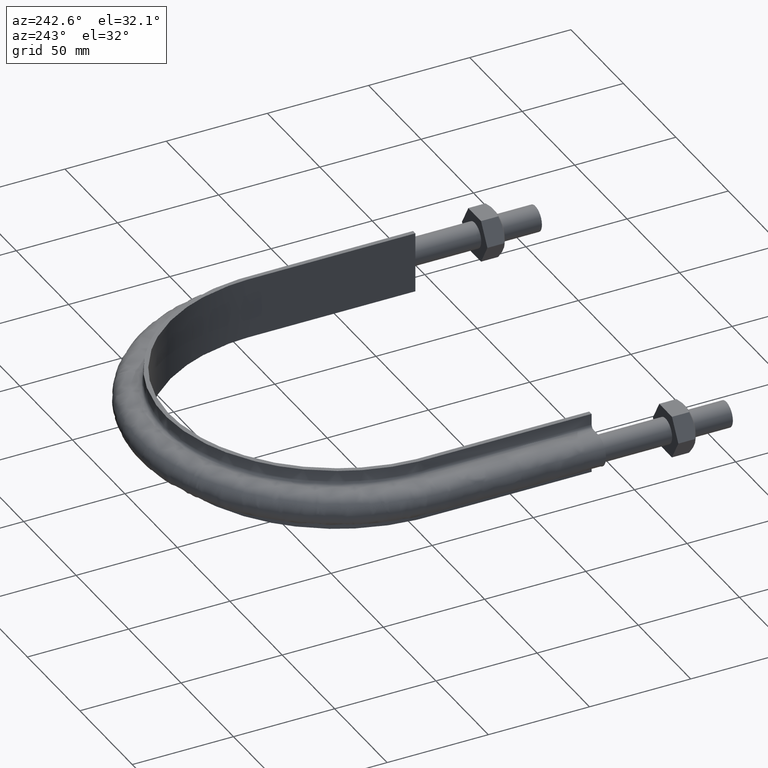
[diagram: clean part render]
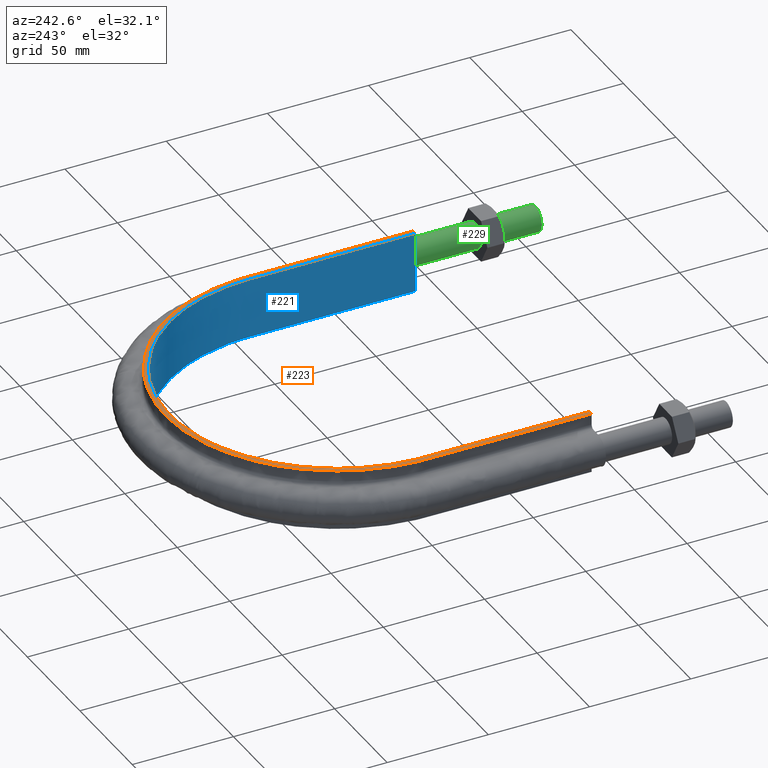
[diagram: same view with three faces highlighted in distinct colors, each labeled with its STEP entity id]
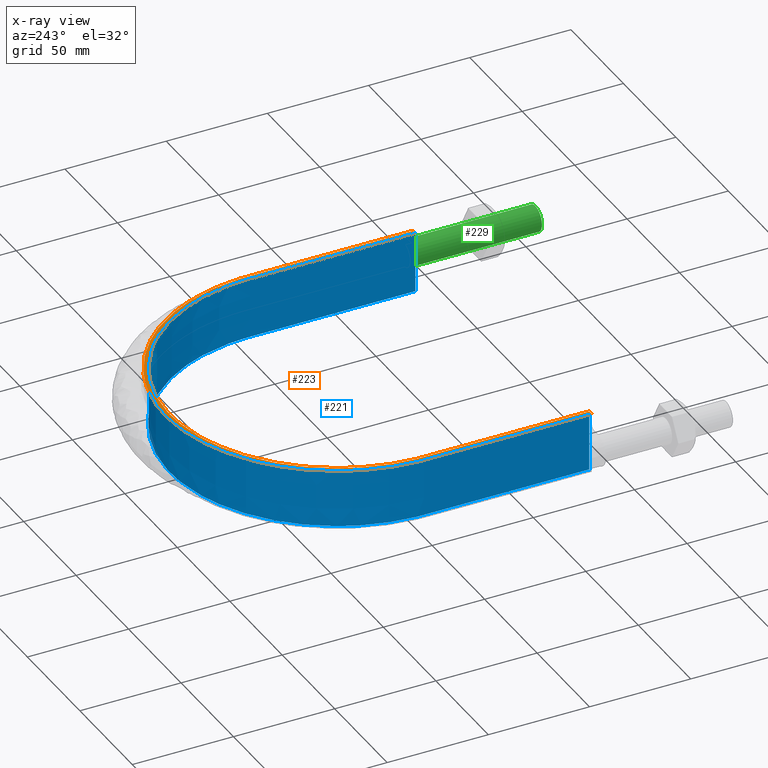
[diagram: x-ray of the same camera — body ghosted, the three highlighted faces saturated]
A machine part, auxiliary view with three faces highlighted in distinct colors.
The next image is the same camera in x-ray (body ghosted, the three faces saturated) — at least one of them is partly hidden behind the body in this view.
Their STEP definitions:

[orange] entity #223 — the highlighted planar face has unit normal (0, 0, 1).
#223 = ADVANCED_FACE( '', ( #268 ), #269, .T. );
#268 = FACE_OUTER_BOUND( '', #365, .T. );
#269 = PLANE( '', #366 );
#365 = EDGE_LOOP( '', ( #1394, #1395, #1396, #1397 ) );
#366 = AXIS2_PLACEMENT_3D( '', #1398, #1399, #1400 );
#1394 = ORIENTED_EDGE( '', *, *, #1602, .T. );
#1395 = ORIENTED_EDGE( '', *, *, #1609, .T. );
#1396 = ORIENTED_EDGE( '', *, *, #1612, .T. );
#1397 = ORIENTED_EDGE( '', *, *, #1614, .F. );
#1398 = CARTESIAN_POINT( '', ( 150.000000000000, 363.500000000000, 15.0000000000000 ) );
#1399 = DIRECTION( '', ( 0.000000000000000, 0.000000000000000, 1.00000000000000 ) );
#1400 = DIRECTION( '', ( 1.00000000000000, 0.000000000000000, 0.000000000000000 ) );
#1602 = EDGE_CURVE( '', #1670, #1668, #1671, .T. );
#1609 = EDGE_CURVE( '', #1668, #1682, #1683, .T. );
#1612 = EDGE_CURVE( '', #1682, #1685, #1687, .T. );
#1614 = EDGE_CURVE( '', #1670, #1685, #1690, .T. );
#1668 = VERTEX_POINT( '', #1784 );
#1670 = VERTEX_POINT( '', #1787 );
#1671 = LINE( '', #1788, #1789 );
#1682 = VERTEX_POINT( '', #1874 );
#1683 = B_SPLINE_CURVE_WITH_KNOTS( '', 3, ( #1875, #1876, #1877, #1878, #1879, #1880, #1881, #1882, #1883, #1884, #1885, #1886, #1887, #1888, #1889, #1890, #1891 ), .UNSPECIFIED., .F., .F., ( 4, 3, 1, 1, 1, 1, 1, 1, 1, 3, 4 ), ( -10.0000000000000, -9.00000000000000, -8.00000000000000, -7.00000000000000, -6.00000000000000, -5.00000000000000, -4.00000000000000, -3.00000000000000, -2.00000000000000, -1.00000000000000, 0.000000000000000 ), .UNSPECIFIED. );
#1685 = VERTEX_POINT( '', #1894 );
#1687 = LINE( '', #1926, #1927 );
#1690 = B_SPLINE_CURVE_WITH_KNOTS( '', 3, ( #1940, #1941, #1942, #1943, #1944, #1945, #1946, #1947, #1948, #1949, #1950, #1951, #1952, #1953, #1954, #1955, #1956 ), .UNSPECIFIED., .F., .F., ( 4, 3, 1, 1, 1, 1, 1, 1, 1, 3, 4 ), ( -10.0000000000000, -9.00000000000000, -8.00000000000000, -7.00000000000000, -6.00000000000000, -5.00000000000000, -4.00000000000000, -3.00000000000000, -2.00000000000000, -1.00000000000000, 0.000000000000000 ), .UNSPECIFIED. );
#1784 = CARTESIAN_POINT( '', ( -82.8499999999999, 63.5000000000003, 15.0000000000000 ) );
#1787 = CARTESIAN_POINT( '', ( -85.0499999999999, 63.5000000000003, 15.0000000000000 ) );
#1788 = CARTESIAN_POINT( '', ( -150.000000000000, 63.5000000000003, 15.0000000000000 ) );
#1789 = VECTOR( '', #2226, 1000.00000000000 );
#1874 = CARTESIAN_POINT( '', ( 82.8500000000002, 63.5000000000003, 15.0000000000000 ) );
#1875 = CARTESIAN_POINT( '', ( -82.8500000000000, 63.5000000000001, 15.0000000000000 ) );
#1876 = CARTESIAN_POINT( '', ( -82.8500000000000, 90.7166666666667, 15.0000000000000 ) );
#1877 = CARTESIAN_POINT( '', ( -82.8500000000000, 117.933333333333, 15.0000000000000 ) );
#1878 = CARTESIAN_POINT( '', ( -82.8500000000000, 145.150000000000, 15.0000000000000 ) );
#1879 = CARTESIAN_POINT( '', ( -82.8500000000000, 155.979512005492, 15.0000000000000 ) );
#1880 = CARTESIAN_POINT( '', ( -78.5361555605724, 177.687272457852, 15.0000000000000 ) );
#1881 = CARTESIAN_POINT( '', ( -60.1089711493570, 205.257212617967, 15.0000000000000 ) );
#1882 = CARTESIAN_POINT( '', ( -32.5307407698323, 223.686657998112, 15.0000000000000 ) );
#1883 = CARTESIAN_POINT( '', ( 5.59407077838651E-014, 230.156671000944, 15.0000000000000 ) );
#1884 = CARTESIAN_POINT( '', ( 32.5307407698323, 223.686657998112, 15.0000000000000 ) );
#1885 = CARTESIAN_POINT( '', ( 60.1089711493571, 205.257212617967, 15.0000000000000 ) );
#1886 = CARTESIAN_POINT( '', ( 78.5361555605725, 177.687272457852, 15.0000000000000 ) );
#1887 = CARTESIAN_POINT( '', ( 82.8500000000000, 155.979512005492, 15.0000000000000 ) );
#1888 = CARTESIAN_POINT( '', ( 82.8500000000000, 145.150000000000, 15.0000000000000 ) );
#1889 = CARTESIAN_POINT( '', ( 82.8500000000000, 117.933333333333, 15.0000000000000 ) );
#1890 = CARTESIAN_POINT( '', ( 82.8500000000000, 90.7166666666667, 15.0000000000000 ) );
#1891 = CARTESIAN_POINT( '', ( 82.8500000000000, 63.5000000000000, 15.0000000000000 ) );
#1894 = CARTESIAN_POINT( '', ( 85.0500000000002, 63.5000000000003, 15.0000000000000 ) );
#1926 = CARTESIAN_POINT( '', ( -150.000000000000, 63.5000000000003, 15.0000000000000 ) );
#1927 = VECTOR( '', #2230, 1000.00000000000 );
#1940 = CARTESIAN_POINT( '', ( -85.0500000000000, 63.5000000000001, 15.0000000000000 ) );
#1941 = CARTESIAN_POINT( '', ( -85.0500000000000, 90.7166666666667, 15.0000000000000 ) );
#1942 = CARTESIAN_POINT( '', ( -85.0500000000000, 117.933333333333, 15.0000000000000 ) );
#1943 = CARTESIAN_POINT( '', ( -85.0500000000000, 145.150000000000, 15.0000000000000 ) );
#1944 = CARTESIAN_POINT( '', ( -85.0500000000000, 156.271250144316, 15.0000000000000 ) );
#1945 = CARTESIAN_POINT( '', ( -80.6216056780529, 178.549331025117, 15.0000000000000 ) );
#1946 = CARTESIAN_POINT( '', ( -61.7051055673243, 206.853821731524, 15.0000000000000 ) );
#1947 = CARTESIAN_POINT( '', ( -33.3945624921452, 225.771972488282, 15.0000000000000 ) );
#1948 = CARTESIAN_POINT( '', ( 4.92782495080004E-014, 232.414013755859, 15.0000000000000 ) );
#1949 = CARTESIAN_POINT( '', ( 33.3945624921453, 225.771972488282, 15.0000000000000 ) );
#1950 = CARTESIAN_POINT( '', ( 61.7051055673243, 206.853821731524, 15.0000000000000 ) );
#1951 = CARTESIAN_POINT( '', ( 80.6216056780530, 178.549331025117, 15.0000000000000 ) );
#1952 = CARTESIAN_POINT( '', ( 85.0500000000000, 156.271250144316, 15.0000000000000 ) );
#1953 = CARTESIAN_POINT( '', ( 85.0500000000000, 145.150000000000, 15.0000000000000 ) );
#1954 = CARTESIAN_POINT( '', ( 85.0500000000000, 117.933333333333, 15.0000000000000 ) );
#1955 = CARTESIAN_POINT( '', ( 85.0500000000000, 90.7166666666667, 15.0000000000000 ) );
#1956 = CARTESIAN_POINT( '', ( 85.0500000000000, 63.5000000000000, 15.0000000000000 ) );
#2226 = DIRECTION( '', ( 1.00000000000000, -1.22460635382238E-016, 0.000000000000000 ) );
#2230 = DIRECTION( '', ( 1.00000000000000, -1.22460635382238E-016, 0.000000000000000 ) );

[blue] entity #221 — the highlighted face is a SurfaceOfExtrusion surface.
#221 = ADVANCED_FACE( '', ( #263 ), #264, .T. );
#263 = FACE_OUTER_BOUND( '', #359, .T. );
#264 = SURFACE_OF_LINEAR_EXTRUSION( '', #360, #361 );
#359 = EDGE_LOOP( '', ( #1364, #1365, #1366, #1367 ) );
#360 = B_SPLINE_CURVE_WITH_KNOTS( '', 3, ( #1368, #1369, #1370, #1371, #1372, #1373, #1374, #1375, #1376, #1377, #1378, #1379, #1380, #1381, #1382, #1383, #1384 ), .UNSPECIFIED., .F., .F., ( 4, 3, 1, 1, 1, 1, 1, 1, 1, 3, 4 ), ( -10.0000000000000, -9.00000000000000, -8.00000000000000, -7.00000000000000, -6.00000000000000, -5.00000000000000, -4.00000000000000, -3.00000000000000, -2.00000000000000, -1.00000000000000, 0.000000000000000 ), .UNSPECIFIED. );
#361 = VECTOR( '', #1385, 1000.00000000000 );
#1364 = ORIENTED_EDGE( '', *, *, #1609, .F. );
#1365 = ORIENTED_EDGE( '', *, *, #1601, .F. );
#1366 = ORIENTED_EDGE( '', *, *, #1606, .T. );
#1367 = ORIENTED_EDGE( '', *, *, #1610, .T. );
#1368 = CARTESIAN_POINT( '', ( -82.8500000000000, 63.5000000000001, -278.469308654335 ) );
#1369 = CARTESIAN_POINT( '', ( -82.8500000000000, 90.7166666666667, -278.469308654335 ) );
#1370 = CARTESIAN_POINT( '', ( -82.8500000000000, 117.933333333333, -278.469308654335 ) );
#1371 = CARTESIAN_POINT( '', ( -82.8500000000000, 145.150000000000, -278.469308654335 ) );
#1372 = CARTESIAN_POINT( '', ( -82.8500000000000, 155.979512005492, -278.469308654335 ) );
#1373 = CARTESIAN_POINT( '', ( -78.5361555605724, 177.687272457852, -278.469308654335 ) );
#1374 = CARTESIAN_POINT( '', ( -60.1089711493570, 205.257212617967, -278.469308654335 ) );
#1375 = CARTESIAN_POINT( '', ( -32.5307407698323, 223.686657998112, -278.469308654335 ) );
#1376 = CARTESIAN_POINT( '', ( 5.59407077838651E-014, 230.156671000944, -278.469308654335 ) );
#1377 = CARTESIAN_POINT( '', ( 32.5307407698323, 223.686657998112, -278.469308654335 ) );
#1378 = CARTESIAN_POINT( '', ( 60.1089711493571, 205.257212617967, -278.469308654335 ) );
#1379 = CARTESIAN_POINT( '', ( 78.5361555605725, 177.687272457852, -278.469308654335 ) );
#1380 = CARTESIAN_POINT( '', ( 82.8500000000000, 155.979512005492, -278.469308654335 ) );
#1381 = CARTESIAN_POINT( '', ( 82.8500000000000, 145.150000000000, -278.469308654335 ) );
#1382 = CARTESIAN_POINT( '', ( 82.8500000000000, 117.933333333333, -278.469308654335 ) );
#1383 = CARTESIAN_POINT( '', ( 82.8500000000000, 90.7166666666667, -278.469308654335 ) );
#1384 = CARTESIAN_POINT( '', ( 82.8500000000000, 63.5000000000000, -278.469308654335 ) );
#1385 = DIRECTION( '', ( 0.000000000000000, 0.000000000000000, 1.00000000000000 ) );
#1601 = EDGE_CURVE( '', #1667, #1668, #1669, .T. );
#1606 = EDGE_CURVE( '', #1667, #1677, #1678, .T. );
#1609 = EDGE_CURVE( '', #1668, #1682, #1683, .T. );
#1610 = EDGE_CURVE( '', #1677, #1682, #1684, .T. );
#1667 = VERTEX_POINT( '', #1783 );
#1668 = VERTEX_POINT( '', #1784 );
#1669 = LINE( '', #1785, #1786 );
#1677 = VERTEX_POINT( '', #1836 );
#1678 = B_SPLINE_CURVE_WITH_KNOTS( '', 3, ( #1837, #1838, #1839, #1840, #1841, #1842, #1843, #1844, #1845, #1846, #1847, #1848, #1849, #1850, #1851, #1852, #1853 ), .UNSPECIFIED., .F., .F., ( 4, 3, 1, 1, 1, 1, 1, 1, 1, 3, 4 ), ( -10.0000000000000, -9.00000000000000, -8.00000000000000, -7.00000000000000, -6.00000000000000, -5.00000000000000, -4.00000000000000, -3.00000000000000, -2.00000000000000, -1.00000000000000, 0.000000000000000 ), .UNSPECIFIED. );
#1682 = VERTEX_POINT( '', #1874 );
#1683 = B_SPLINE_CURVE_WITH_KNOTS( '', 3, ( #1875, #1876, #1877, #1878, #1879, #1880, #1881, #1882, #1883, #1884, #1885, #1886, #1887, #1888, #1889, #1890, #1891 ), .UNSPECIFIED., .F., .F., ( 4, 3, 1, 1, 1, 1, 1, 1, 1, 3, 4 ), ( -10.0000000000000, -9.00000000000000, -8.00000000000000, -7.00000000000000, -6.00000000000000, -5.00000000000000, -4.00000000000000, -3.00000000000000, -2.00000000000000, -1.00000000000000, 0.000000000000000 ), .UNSPECIFIED. );
#1684 = LINE( '', #1892, #1893 );
#1783 = CARTESIAN_POINT( '', ( -82.8499999999999, 63.5000000000003, -15.0000000000000 ) );
#1784 = CARTESIAN_POINT( '', ( -82.8499999999999, 63.5000000000003, 15.0000000000000 ) );
#1785 = CARTESIAN_POINT( '', ( -82.8500000000000, 63.5000000000001, -278.469308654335 ) );
#1786 = VECTOR( '', #2225, 1000.00000000000 );
#1836 = CARTESIAN_POINT( '', ( 82.8500000000000, 63.5000000000000, -15.0000000000000 ) );
#1837 = CARTESIAN_POINT( '', ( -82.8500000000000, 63.5000000000001, -15.0000000000000 ) );
#1838 = CARTESIAN_POINT( '', ( -82.8500000000000, 90.7166666666667, -15.0000000000000 ) );
#1839 = CARTESIAN_POINT( '', ( -82.8500000000000, 117.933333333333, -15.0000000000000 ) );
#1840 = CARTESIAN_POINT( '', ( -82.8500000000000, 145.150000000000, -15.0000000000000 ) );
#1841 = CARTESIAN_POINT( '', ( -82.8500000000000, 155.979512005492, -15.0000000000000 ) );
#1842 = CARTESIAN_POINT( '', ( -78.5361555605724, 177.687272457852, -15.0000000000000 ) );
#1843 = CARTESIAN_POINT( '', ( -60.1089711493570, 205.257212617967, -15.0000000000000 ) );
#1844 = CARTESIAN_POINT( '', ( -32.5307407698323, 223.686657998112, -15.0000000000000 ) );
#1845 = CARTESIAN_POINT( '', ( 5.59407077838651E-014, 230.156671000944, -15.0000000000000 ) );
#1846 = CARTESIAN_POINT( '', ( 32.5307407698323, 223.686657998112, -15.0000000000000 ) );
#1847 = CARTESIAN_POINT( '', ( 60.1089711493571, 205.257212617967, -15.0000000000000 ) );
#1848 = CARTESIAN_POINT( '', ( 78.5361555605725, 177.687272457852, -15.0000000000000 ) );
#1849 = CARTESIAN_POINT( '', ( 82.8500000000000, 155.979512005492, -15.0000000000000 ) );
#1850 = CARTESIAN_POINT( '', ( 82.8500000000000, 145.150000000000, -15.0000000000000 ) );
#1851 = CARTESIAN_POINT( '', ( 82.8500000000000, 117.933333333333, -15.0000000000000 ) );
#1852 = CARTESIAN_POINT( '', ( 82.8500000000000, 90.7166666666667, -15.0000000000000 ) );
#1853 = CARTESIAN_POINT( '', ( 82.8500000000000, 63.5000000000000, -15.0000000000000 ) );
#1874 = CARTESIAN_POINT( '', ( 82.8500000000002, 63.5000000000003, 15.0000000000000 ) );
#1875 = CARTESIAN_POINT( '', ( -82.8500000000000, 63.5000000000001, 15.0000000000000 ) );
#1876 = CARTESIAN_POINT( '', ( -82.8500000000000, 90.7166666666667, 15.0000000000000 ) );
#1877 = CARTESIAN_POINT( '', ( -82.8500000000000, 117.933333333333, 15.0000000000000 ) );
#1878 = CARTESIAN_POINT( '', ( -82.8500000000000, 145.150000000000, 15.0000000000000 ) );
#1879 = CARTESIAN_POINT( '', ( -82.8500000000000, 155.979512005492, 15.0000000000000 ) );
#1880 = CARTESIAN_POINT( '', ( -78.5361555605724, 177.687272457852, 15.0000000000000 ) );
#1881 = CARTESIAN_POINT( '', ( -60.1089711493570, 205.257212617967, 15.0000000000000 ) );
#1882 = CARTESIAN_POINT( '', ( -32.5307407698323, 223.686657998112, 15.0000000000000 ) );
#1883 = CARTESIAN_POINT( '', ( 5.59407077838651E-014, 230.156671000944, 15.0000000000000 ) );
#1884 = CARTESIAN_POINT( '', ( 32.5307407698323, 223.686657998112, 15.0000000000000 ) );
#1885 = CARTESIAN_POINT( '', ( 60.1089711493571, 205.257212617967, 15.0000000000000 ) );
#1886 = CARTESIAN_POINT( '', ( 78.5361555605725, 177.687272457852, 15.0000000000000 ) );
#1887 = CARTESIAN_POINT( '', ( 82.8500000000000, 155.979512005492, 15.0000000000000 ) );
#1888 = CARTESIAN_POINT( '', ( 82.8500000000000, 145.150000000000, 15.0000000000000 ) );
#1889 = CARTESIAN_POINT( '', ( 82.8500000000000, 117.933333333333, 15.0000000000000 ) );
#1890 = CARTESIAN_POINT( '', ( 82.8500000000000, 90.7166666666667, 15.0000000000000 ) );
#1891 = CARTESIAN_POINT( '', ( 82.8500000000000, 63.5000000000000, 15.0000000000000 ) );
#1892 = CARTESIAN_POINT( '', ( 82.8500000000000, 63.5000000000000, -278.469308654335 ) );
#1893 = VECTOR( '', #2229, 1000.00000000000 );
#2225 = DIRECTION( '', ( 0.000000000000000, 0.000000000000000, 1.00000000000000 ) );
#2229 = DIRECTION( '', ( 0.000000000000000, 0.000000000000000, 1.00000000000000 ) );

[green] entity #229 — the highlighted cylindrical surface (bore or boss wall) has radius 6.25 mm, axis along (0, 1, -0).
#229 = ADVANCED_FACE( '', ( #283, #284 ), #285, .T. );
#283 = FACE_OUTER_BOUND( '', #1278, .T. );
#284 = FACE_OUTER_BOUND( '', #1279, .T. );
#285 = CYLINDRICAL_SURFACE( '', #1280, 6.25000000000001 );
#1278 = EDGE_LOOP( '', ( #1418 ) );
#1279 = EDGE_LOOP( '', ( #1419 ) );
#1280 = AXIS2_PLACEMENT_3D( '', #1420, #1421, #1422 );
#1418 = ORIENTED_EDGE( '', *, *, #1620, .T. );
#1419 = ORIENTED_EDGE( '', *, *, #1617, .F. );
#1420 = CARTESIAN_POINT( '', ( 91.0000000000000, 65.0000000000000, -1.98998532496136E-014 ) );
#1421 = DIRECTION( '', ( 2.44921270764475E-016, 1.00000000000000, -3.06151588455594E-016 ) );
#1422 = DIRECTION( '', ( 1.00000000000000, -2.44921270764475E-016, 0.000000000000000 ) );
#1617 = EDGE_CURVE( '', #1695, #1695, #1696, .T. );
#1620 = EDGE_CURVE( '', #1701, #1701, #1702, .T. );
#1695 = VERTEX_POINT( '', #1981 );
#1696 = CIRCLE( '', #1982, 6.25000000000001 );
#1701 = VERTEX_POINT( '', #1987 );
#1702 = CIRCLE( '', #1988, 6.25000000000001 );
#1981 = CARTESIAN_POINT( '', ( 97.2500000000000, -1.26746757620616E-014, 0.000000000000000 ) );
#1982 = AXIS2_PLACEMENT_3D( '', #2231, #2232, #2233 );
#1987 = CARTESIAN_POINT( '', ( 97.2500000000000, 65.0000000000000, -1.98998532496136E-014 ) );
#1988 = AXIS2_PLACEMENT_3D( '', #2240, #2241, #2242 );
#2231 = CARTESIAN_POINT( '', ( 91.0000000000000, -1.11439178197836E-014, 0.000000000000000 ) );
#2232 = DIRECTION( '', ( -2.44921270764475E-016, -1.00000000000000, 3.06151588455594E-016 ) );
#2233 = DIRECTION( '', ( 1.00000000000000, -2.44921270764475E-016, 0.000000000000000 ) );
#2240 = CARTESIAN_POINT( '', ( 91.0000000000000, 65.0000000000000, -1.98998532496136E-014 ) );
#2241 = DIRECTION( '', ( -2.44921270764475E-016, -1.00000000000000, 3.06151588455594E-016 ) );
#2242 = DIRECTION( '', ( 1.00000000000000, -2.44921270764475E-016, 0.000000000000000 ) );